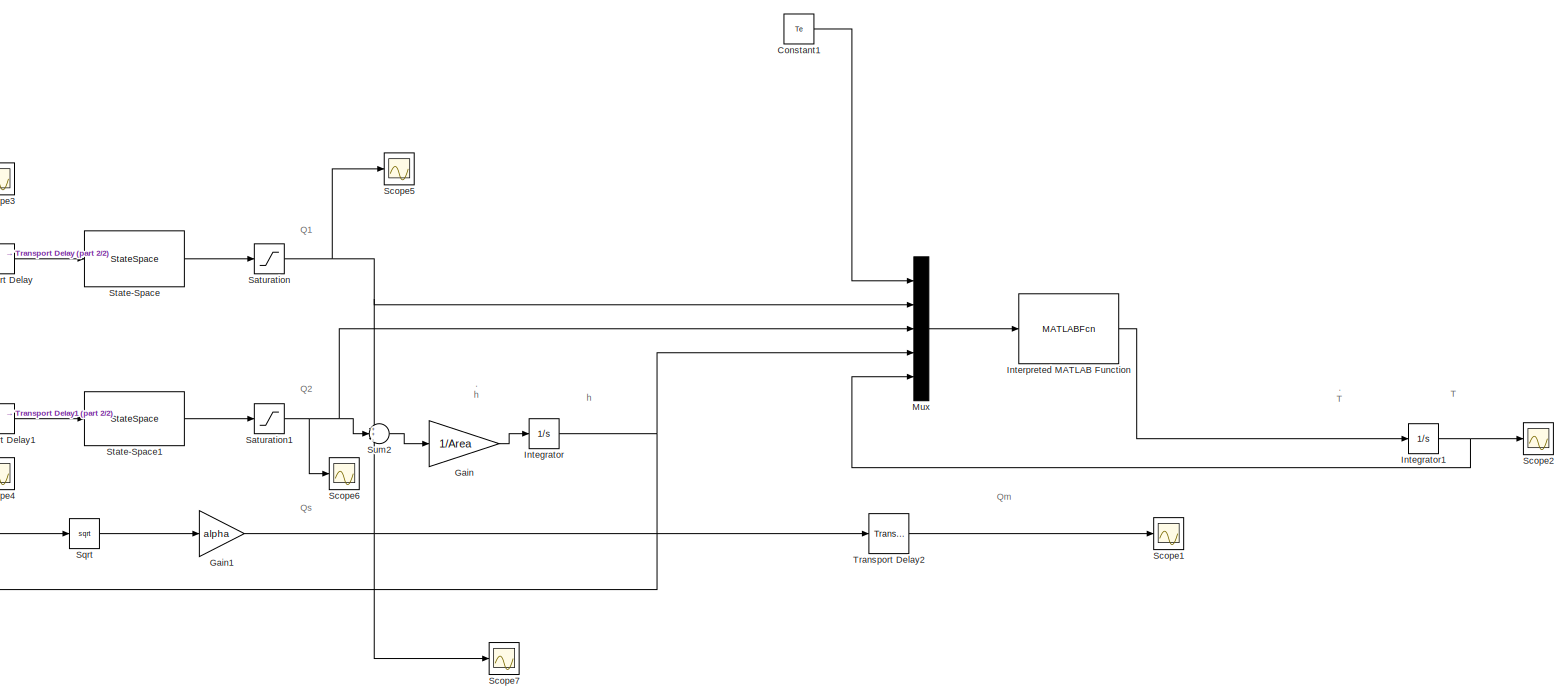
[diagram: root canvas - part 1/2, most of the canvas]
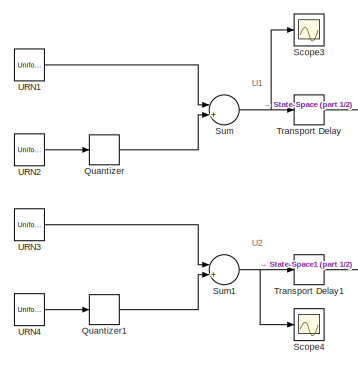
[diagram: root canvas - part 2/2, middle left region]
MODEL slx_40f85dd8887e
KIND model
CONFIG AbsTol = auto
CONFIG EnableMultiTasking = off
CONFIG FixedStep = auto
CONFIG MaxStep = auto
CONFIG MinStep = auto
CONFIG PostLoadFcn = % addpath('..\');\n% addpath('..\..\Funciones');\nload ParametrosSimulacion\nParametrosTanque
CONFIG RelTol = 1e-3
CONFIG SampleTimeConstraint = Unconstrained
CONFIG Solver = VariableStepAuto
CONFIG SolverName = VariableStepAuto
CONFIG StartTime = 0.0
CONFIG StopTime = tsim
BLOCK [Constant] Constant1
  Value = Te
BLOCK [Gain] Gain
  Gain = 1/Area
BLOCK [Gain] Gain1
  Gain = alpha
BLOCK [Integrator] Integrator
  InitialCondition = (4/alpha^2)
  LimitOutput = on
  LowerSaturationLimit = 0
  Ports = [1, 1]
BLOCK [Integrator] Integrator1
  InitialCondition = 49.9
  LowerSaturationLimit = 0
  Ports = [1, 1]
BLOCK [MATLABFcn] Interpreted MATLAB Function
  MATLABFcn = 1/(Area*u(4))*((T1-u(5))*u(2)+(T2-u(5))*u(3)-Kp*(u(5)-u(1)));
  OutputDimensions = 1
  Ports = [1, 1]
BLOCK [Mux] Mux
  DisplayOption = bar
  Inputs = 5
  Ports = [5, 1]
BLOCK [Quantizer] Quantizer
  QuantizationInterval = .25
BLOCK [Quantizer] Quantizer1
  QuantizationInterval = .25
BLOCK [Saturate] Saturation
  LowerLimit = 0
  UpperLimit = inf
BLOCK [Saturate] Saturation1
  LowerLimit = 0
  UpperLimit = inf
BLOCK [Scope] Scope1
  Floating = off
  NumInputPorts = 1
  Ports = [1]
  ScopeSpecificationString = Simulink.scopes.TimeScopeBlockCfg('CurrentConfiguration', extmgr.ConfigurationSet(extmgr.Configuration('Core','General UI',true),extmgr.Configuration('Core','Source UI',true),extmgr.Configuration('Sources','WiredSimulink',true,'DataLoggingVariableName','Qm','DataLogging',true,'DataLoggingSaveFormat','Array','SampleTime','tmuestra'),extmgr.Configuration('Visuals','Time Domain',true,'SerializedDispl...<+1440ch>
BLOCK [Scope] Scope2
  Floating = off
  NumInputPorts = 1
  Ports = [1]
  ScopeSpecificationString = Simulink.scopes.TimeScopeBlockCfg('CurrentConfiguration', extmgr.ConfigurationSet(extmgr.Configuration('Core','General UI',true),extmgr.Configuration('Core','Source UI',true),extmgr.Configuration('Sources','WiredSimulink',true,'DataLoggingVariableName','T','DataLogging',true,'DataLoggingSaveFormat','Array','SampleTime','tmuestra'),extmgr.Configuration('Visuals','Time Domain',true,'SerializedDispla...<+1439ch>
BLOCK [Scope] Scope3
  Floating = off
  NumInputPorts = 1
  Ports = [1]
  ScopeSpecificationString = Simulink.scopes.TimeScopeBlockCfg('CurrentConfiguration', extmgr.ConfigurationSet(extmgr.Configuration('Core','General UI',true),extmgr.Configuration('Core','Source UI',true),extmgr.Configuration('Sources','WiredSimulink',true,'DataLoggingVariableName','U1','DataLogging',true,'DataLoggingSaveFormat','Array','SampleTime','tmuestra'),extmgr.Configuration('Visuals','Time Domain',true,'SerializedDispl...<+1484ch>
BLOCK [Scope] Scope4
  Floating = off
  NumInputPorts = 1
  Ports = [1]
  ScopeSpecificationString = Simulink.scopes.TimeScopeBlockCfg('CurrentConfiguration', extmgr.ConfigurationSet(extmgr.Configuration('Core','General UI',true),extmgr.Configuration('Core','Source UI',true),extmgr.Configuration('Sources','WiredSimulink',true,'DataLoggingVariableName','U2','DataLogging',true,'DataLoggingSaveFormat','Array','SampleTime','tmuestra'),extmgr.Configuration('Visuals','Time Domain',true,'SerializedDispl...<+1440ch>
BLOCK [Scope] Scope5
  Floating = off
  NumInputPorts = 1
  Ports = [1]
  ScopeSpecificationString = Simulink.scopes.TimeScopeBlockCfg('CurrentConfiguration', extmgr.ConfigurationSet(extmgr.Configuration('Core','General UI',true),extmgr.Configuration('Core','Source UI',true),extmgr.Configuration('Sources','WiredSimulink',true,'DataLoggingVariableName','Q1','DataLogging',true,'DataLoggingSaveFormat','Array','SampleTime','tmuestra'),extmgr.Configuration('Visuals','Time Domain',true,'SerializedDispl...<+1491ch>
BLOCK [Scope] Scope6
  Floating = off
  NumInputPorts = 1
  Ports = [1]
  ScopeSpecificationString = Simulink.scopes.TimeScopeBlockCfg('CurrentConfiguration', extmgr.ConfigurationSet(extmgr.Configuration('Core','General UI',true),extmgr.Configuration('Core','Source UI',true),extmgr.Configuration('Sources','WiredSimulink',true,'DataLoggingVariableName','Q2','DataLogging',true,'DataLoggingSaveFormat','Array','SampleTime','tmuestra'),extmgr.Configuration('Visuals','Time Domain',true,'SerializedDispl...<+1488ch>
BLOCK [Scope] Scope7
  Floating = off
  NumInputPorts = 1
  Ports = [1]
  ScopeSpecificationString = Simulink.scopes.TimeScopeBlockCfg('CurrentConfiguration', extmgr.ConfigurationSet(extmgr.Configuration('Core','General UI',true),extmgr.Configuration('Core','Source UI',true),extmgr.Configuration('Sources','WiredSimulink',true,'DataLoggingVariableName','Q','DataLogging',true,'DataLoggingSaveFormat','Array','SampleTime','tmuestra'),extmgr.Configuration('Visuals','Time Domain',true,'SerializedDispla...<+1481ch>
BLOCK [Sqrt] Sqrt
BLOCK [StateSpace] State-Space
  A = -1/tau1
  B = K1/tau1
  D = 0
  InitialCondition = 2
  Ports = [1, 1]
BLOCK [StateSpace] State-Space1
  A = -1/tau2
  B = K2/tau2
  D = 0
  InitialCondition = 2
  Ports = [1, 1]
BLOCK [Sum] Sum
  Inputs = |+|+|
  Ports = [2, 1]
BLOCK [Sum] Sum1
  Inputs = |+|+|
  Ports = [2, 1]
BLOCK [Sum] Sum2
  Inputs = ++|-
  Ports = [3, 1]
BLOCK [TransportDelay] Transport Delay
  DelayTime = tdelay1
  InitialOutput = 2
  Ports = [1, 1]
BLOCK [TransportDelay] Transport Delay1
  DelayTime = tdelay2
  InitialOutput = 2
  Ports = [1, 1]
BLOCK [TransportDelay] Transport Delay2
  DelayTime = tdelayQ
  InitialOutput = 4
  Ports = [1, 1]
BLOCK [UniformRandomNumber] URN1
  Maximum = .25
  Minimum = -.25
  SampleTime = tmuestra
  Seed = seed(1)
BLOCK [UniformRandomNumber] URN2
  Maximum = 3.875
  Minimum = .125
  SampleTime = tvar1
  Seed = seed(2)
BLOCK [UniformRandomNumber] URN3
  Maximum = .25
  Minimum = -.25
  SampleTime = tmuestra
  Seed = seed(3)
BLOCK [UniformRandomNumber] URN4
  Maximum = 3.875
  Minimum = .125
  SampleTime = tvar2
  Seed = seed(4)
ANNOTATION (root): . h
ANNOTATION (root): . T
ANNOTATION (root): Q1
ANNOTATION (root): Q2
ANNOTATION (root): Qm
ANNOTATION (root): Qs
ANNOTATION (root): T
ANNOTATION (root): U1
ANNOTATION (root): U2
ANNOTATION (root): h
LINE Constant1:1 -> Mux:1
NET Gain1:1 -> Scope7:1, Sum2:3, Transport Delay2:1
LINE Gain:1 -> Integrator:1
NET Integrator1:1 -> Mux:5, Scope2:1
NET Integrator:1 -> Mux:4, Sqrt:1
LINE Interpreted MATLAB Function:1 -> Integrator1:1
LINE Mux:1 -> Interpreted MATLAB Function:1
LINE Quantizer1:1 -> Sum1:2
LINE Quantizer:1 -> Sum:2
NET Saturation1:1 -> Mux:3, Scope6:1, Sum2:2
NET Saturation:1 -> Mux:2, Scope5:1, Sum2:1
LINE Sqrt:1 -> Gain1:1
LINE State-Space1:1 -> Saturation1:1
LINE State-Space:1 -> Saturation:1
NET Sum1:1 -> Scope4:1, Transport Delay1:1
LINE Sum2:1 -> Gain:1
NET Sum:1 -> Scope3:1, Transport Delay:1
LINE Transport Delay1:1 -> State-Space1:1
LINE Transport Delay2:1 -> Scope1:1
LINE Transport Delay:1 -> State-Space:1
LINE URN1:1 -> Sum:1
LINE URN2:1 -> Quantizer:1
LINE URN3:1 -> Sum1:1
LINE URN4:1 -> Quantizer1:1
note: NET lines group one-source signal fan-out (src -> all destinations, sorted); 1:1 wires keep LINE
